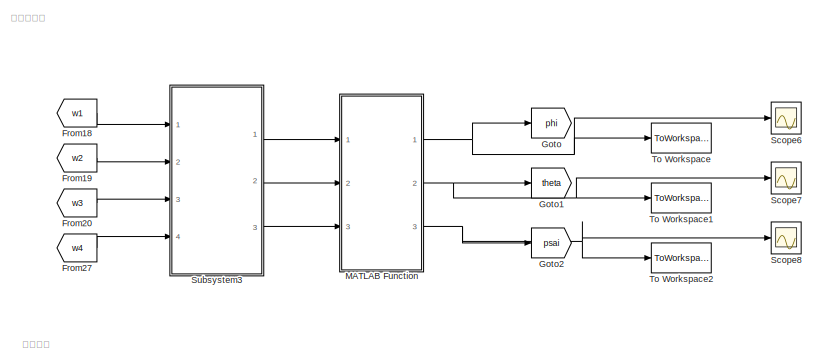
[diagram: root canvas - part 1/3, top center region]
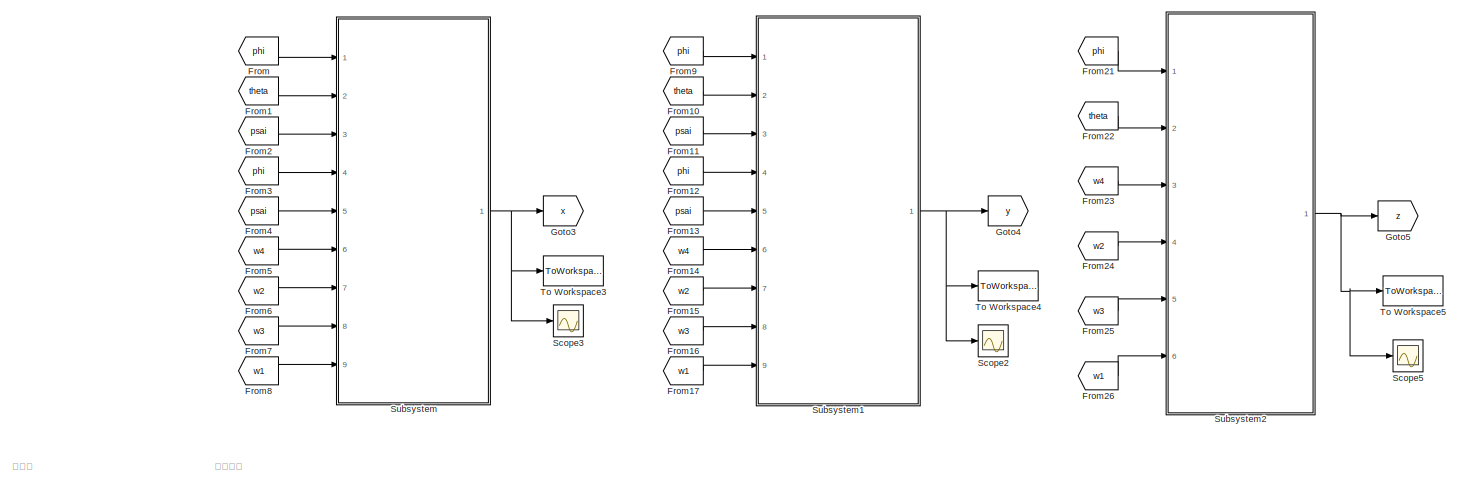
[diagram: root canvas - part 2/3, full width, middle band]
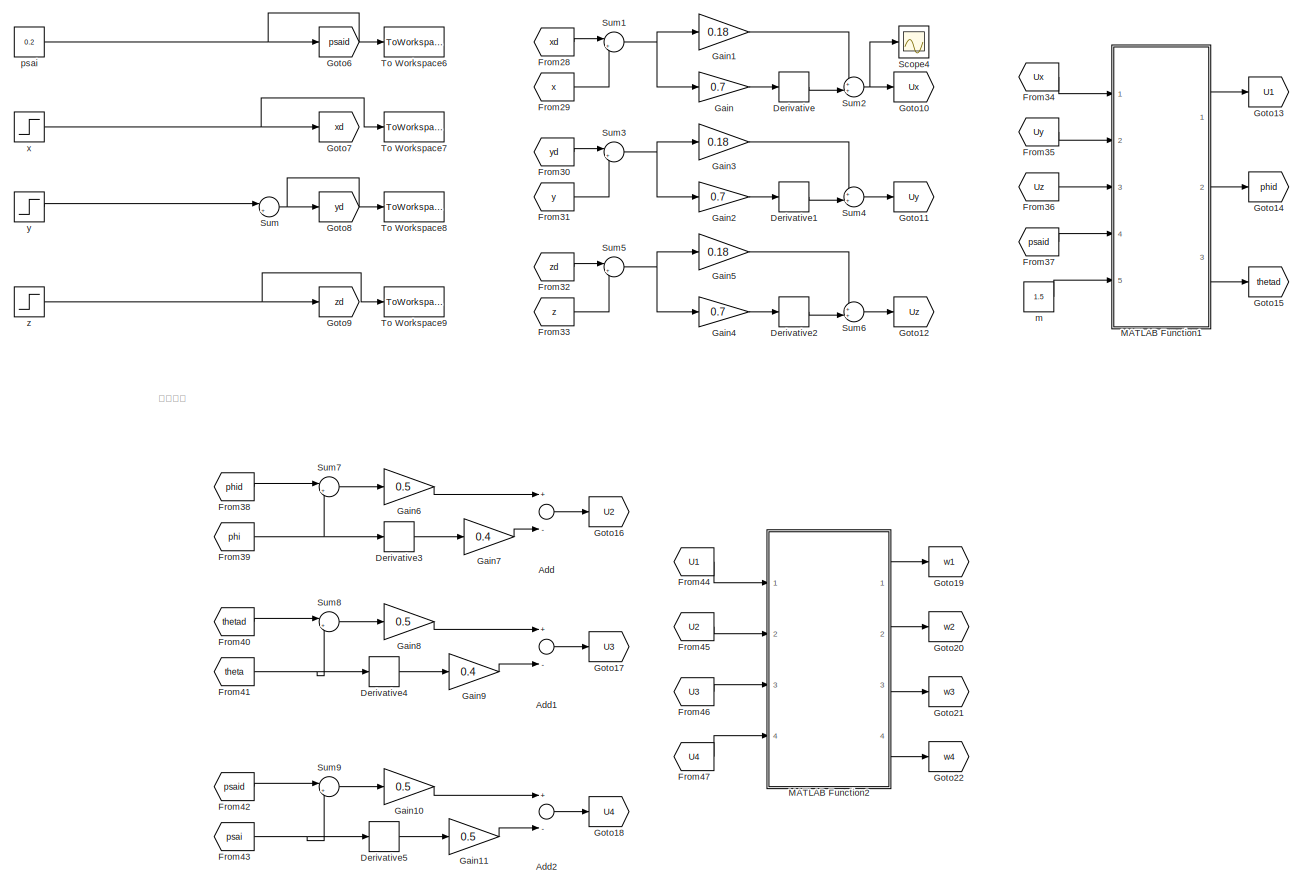
[diagram: root canvas - part 3/3, full width, bottom band]
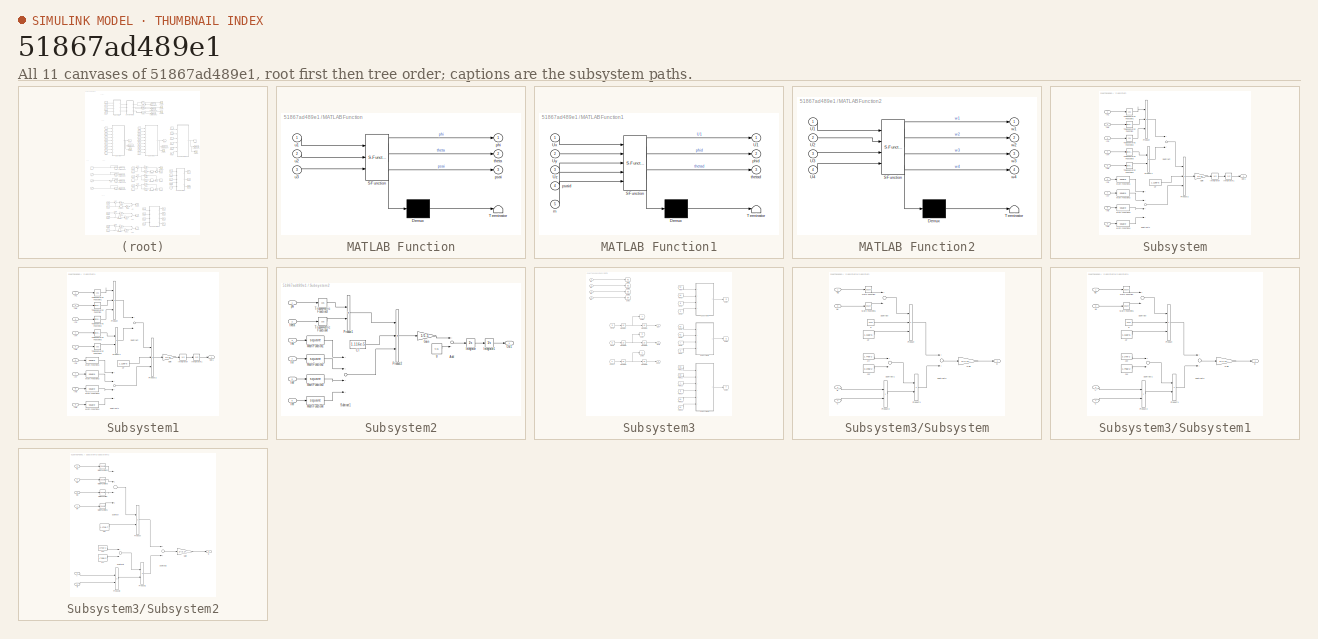
[diagram: thumbnail index - all 11 canvases of the model, root first then tree order]
MODEL slx_51867ad489e1
KIND model
CONFIG AbsTol = auto
CONFIG EnableMultiTasking = off
CONFIG FixedStep = 0.05
CONFIG MaxStep = auto
CONFIG MinStep = auto
CONFIG RelTol = 1e-3
CONFIG SampleTimeConstraint = Unconstrained
CONFIG Solver = FixedStepAuto
CONFIG SolverName = FixedStepAuto
CONFIG StartTime = 0.0
CONFIG StopTime = 50
BLOCK [Sum] Add
  InputSameDT = off
  Inputs = +-
  OutDataTypeStr = Inherit: Inherit via internal rule
  Ports = [2, 1]
  SaturateOnIntegerOverflow = off
BLOCK [Sum] Add1
  InputSameDT = off
  Inputs = +-
  OutDataTypeStr = Inherit: Inherit via internal rule
  Ports = [2, 1]
  SaturateOnIntegerOverflow = off
BLOCK [Sum] Add2
  InputSameDT = off
  Inputs = +-
  OutDataTypeStr = Inherit: Inherit via internal rule
  Ports = [2, 1]
  SaturateOnIntegerOverflow = off
BLOCK [Derivative] Derivative
BLOCK [Derivative] Derivative1
BLOCK [Derivative] Derivative2
BLOCK [Derivative] Derivative3
BLOCK [Derivative] Derivative4
BLOCK [Derivative] Derivative5
BLOCK [From] From
  GotoTag = phi
BLOCK [From] From1
  GotoTag = theta
BLOCK [From] From10
  GotoTag = theta
BLOCK [From] From11
  GotoTag = psai
BLOCK [From] From12
  GotoTag = phi
BLOCK [From] From13
  GotoTag = psai
BLOCK [From] From14
  GotoTag = w4
BLOCK [From] From15
  GotoTag = w2
BLOCK [From] From16
  GotoTag = w3
BLOCK [From] From17
  GotoTag = w1
BLOCK [From] From18
  GotoTag = w1
BLOCK [From] From19
  GotoTag = w2
BLOCK [From] From2
  GotoTag = psai
BLOCK [From] From20
  GotoTag = w3
BLOCK [From] From21
  GotoTag = phi
BLOCK [From] From22
  GotoTag = theta
BLOCK [From] From23
  GotoTag = w4
BLOCK [From] From24
  GotoTag = w2
BLOCK [From] From25
  GotoTag = w3
BLOCK [From] From26
  GotoTag = w1
BLOCK [From] From27
  GotoTag = w4
BLOCK [From] From28
  GotoTag = xd
BLOCK [From] From29
  GotoTag = x
BLOCK [From] From3
  GotoTag = phi
BLOCK [From] From30
  GotoTag = yd
BLOCK [From] From31
  GotoTag = y
BLOCK [From] From32
  GotoTag = zd
BLOCK [From] From33
  GotoTag = z
BLOCK [From] From34
  GotoTag = Ux
BLOCK [From] From35
  GotoTag = Uy
BLOCK [From] From36
  GotoTag = Uz
BLOCK [From] From37
  GotoTag = psaid
BLOCK [From] From38
  GotoTag = phid
BLOCK [From] From39
  GotoTag = phi
BLOCK [From] From4
  GotoTag = psai
BLOCK [From] From40
  GotoTag = thetad
BLOCK [From] From41
  GotoTag = theta
BLOCK [From] From42
  GotoTag = psaid
BLOCK [From] From43
  GotoTag = psai
BLOCK [From] From44
  GotoTag = U1
BLOCK [From] From45
  GotoTag = U2
BLOCK [From] From46
  GotoTag = U3
BLOCK [From] From47
  GotoTag = U4
BLOCK [From] From5
  GotoTag = w4
BLOCK [From] From6
  GotoTag = w2
BLOCK [From] From7
  GotoTag = w3
BLOCK [From] From8
  GotoTag = w1
BLOCK [From] From9
  GotoTag = phi
BLOCK [Gain] Gain
  Gain = 0.7
  OutDataTypeStr = Inherit: Inherit via internal rule
  ParamDataTypeStr = Inherit: Inherit via internal rule
  SaturateOnIntegerOverflow = off
BLOCK [Gain] Gain1
  Gain = 0.18
  OutDataTypeStr = Inherit: Inherit via internal rule
  ParamDataTypeStr = Inherit: Inherit via internal rule
  SaturateOnIntegerOverflow = off
BLOCK [Gain] Gain10
  Gain = 0.5
  OutDataTypeStr = Inherit: Inherit via internal rule
  ParamDataTypeStr = Inherit: Inherit via internal rule
  SaturateOnIntegerOverflow = off
BLOCK [Gain] Gain11
  Gain = 0.5
  OutDataTypeStr = Inherit: Inherit via internal rule
  ParamDataTypeStr = Inherit: Inherit via internal rule
  SaturateOnIntegerOverflow = off
BLOCK [Gain] Gain2
  Gain = 0.7
  OutDataTypeStr = Inherit: Inherit via internal rule
  ParamDataTypeStr = Inherit: Inherit via internal rule
  SaturateOnIntegerOverflow = off
BLOCK [Gain] Gain3
  Gain = 0.18
  OutDataTypeStr = Inherit: Inherit via internal rule
  ParamDataTypeStr = Inherit: Inherit via internal rule
  SaturateOnIntegerOverflow = off
BLOCK [Gain] Gain4
  Gain = 0.7
  OutDataTypeStr = Inherit: Inherit via internal rule
  ParamDataTypeStr = Inherit: Inherit via internal rule
  SaturateOnIntegerOverflow = off
BLOCK [Gain] Gain5
  Gain = 0.18
  OutDataTypeStr = Inherit: Inherit via internal rule
  ParamDataTypeStr = Inherit: Inherit via internal rule
  SaturateOnIntegerOverflow = off
BLOCK [Gain] Gain6
  Gain = 0.5
  OutDataTypeStr = Inherit: Inherit via internal rule
  ParamDataTypeStr = Inherit: Inherit via internal rule
  SaturateOnIntegerOverflow = off
BLOCK [Gain] Gain7
  Gain = 0.4
  OutDataTypeStr = Inherit: Inherit via internal rule
  ParamDataTypeStr = Inherit: Inherit via internal rule
  SaturateOnIntegerOverflow = off
BLOCK [Gain] Gain8
  Gain = 0.5
  OutDataTypeStr = Inherit: Inherit via internal rule
  ParamDataTypeStr = Inherit: Inherit via internal rule
  SaturateOnIntegerOverflow = off
BLOCK [Gain] Gain9
  Gain = 0.4
  OutDataTypeStr = Inherit: Inherit via internal rule
  ParamDataTypeStr = Inherit: Inherit via internal rule
  SaturateOnIntegerOverflow = off
BLOCK [Goto] Goto
  GotoTag = phi
BLOCK [Goto] Goto1
  GotoTag = theta
BLOCK [Goto] Goto10
  GotoTag = Ux
BLOCK [Goto] Goto11
  GotoTag = Uy
BLOCK [Goto] Goto12
  GotoTag = Uz
BLOCK [Goto] Goto13
  GotoTag = U1
BLOCK [Goto] Goto14
  GotoTag = phid
BLOCK [Goto] Goto15
  GotoTag = thetad
BLOCK [Goto] Goto16
  GotoTag = U2
BLOCK [Goto] Goto17
  GotoTag = U3
BLOCK [Goto] Goto18
  GotoTag = U4
BLOCK [Goto] Goto19
  GotoTag = w1
BLOCK [Goto] Goto2
  GotoTag = psai
BLOCK [Goto] Goto20
  GotoTag = w2
BLOCK [Goto] Goto21
  GotoTag = w3
BLOCK [Goto] Goto22
  GotoTag = w4
BLOCK [Goto] Goto3
  GotoTag = x
BLOCK [Goto] Goto4
  GotoTag = y
BLOCK [Goto] Goto5
  GotoTag = z
BLOCK [Goto] Goto6
  GotoTag = psaid
BLOCK [Goto] Goto7
  GotoTag = xd
BLOCK [Goto] Goto8
  GotoTag = yd
BLOCK [Goto] Goto9
  GotoTag = zd
BLOCK [SubSystem] MATLAB Function
  ErrorFcn = Stateflow.Translate.translate
  PermitHierarchicalResolution = ExplicitOnly
  Ports = [3, 3]
  RequestExecContextInheritance = off
  SFBlockType = MATLAB Function
  TreatAsAtomicUnit = on
  Variant = off
BLOCK [Demux] MATLAB Function/ Demux 
  Outputs = 1
  Ports = [1, 1]
BLOCK [S-Function] MATLAB Function/ SFunction 
  EnableBusSupport = on
  FunctionName = sf_sfun
  PortCounts = [3 4]
  Ports = [3, 4]
  SFcnIsStateOwnerBlock = off
  SFunctionDeploymentMode = off
  Tag = Stateflow S-Function PDcontroller 2
BLOCK [Terminator] MATLAB Function/ Terminator 
BLOCK [Outport] MATLAB Function/phi
  IconDisplay = Port number
BLOCK [Outport] MATLAB Function/psai
  IconDisplay = Port number
  Port = 3
BLOCK [Outport] MATLAB Function/theta
  IconDisplay = Port number
  Port = 2
BLOCK [Inport] MATLAB Function/u1
  IconDisplay = Port number
BLOCK [Inport] MATLAB Function/u2
  IconDisplay = Port number
  Port = 2
BLOCK [Inport] MATLAB Function/u3
  IconDisplay = Port number
  Port = 3
BLOCK [SubSystem] MATLAB Function1
  ErrorFcn = Stateflow.Translate.translate
  PermitHierarchicalResolution = ExplicitOnly
  Ports = [5, 3]
  RequestExecContextInheritance = off
  SFBlockType = MATLAB Function
  TreatAsAtomicUnit = on
  Variant = off
BLOCK [Demux] MATLAB Function1/ Demux 
  Outputs = 1
  Ports = [1, 1]
BLOCK [S-Function] MATLAB Function1/ SFunction 
  EnableBusSupport = on
  FunctionName = sf_sfun
  PortCounts = [5 4]
  Ports = [5, 4]
  SFcnIsStateOwnerBlock = off
  SFunctionDeploymentMode = off
  Tag = Stateflow S-Function PDcontroller 1
BLOCK [Terminator] MATLAB Function1/ Terminator 
BLOCK [Outport] MATLAB Function1/U1
  IconDisplay = Port number
BLOCK [Inport] MATLAB Function1/Ux
  IconDisplay = Port number
BLOCK [Inport] MATLAB Function1/Uy
  IconDisplay = Port number
  Port = 2
BLOCK [Inport] MATLAB Function1/Uz
  IconDisplay = Port number
  Port = 3
BLOCK [Inport] MATLAB Function1/m
  IconDisplay = Port number
  Port = 5
BLOCK [Outport] MATLAB Function1/phid
  IconDisplay = Port number
  Port = 2
BLOCK [Inport] MATLAB Function1/psaid
  IconDisplay = Port number
  Port = 4
BLOCK [Outport] MATLAB Function1/thetad
  IconDisplay = Port number
  Port = 3
BLOCK [SubSystem] MATLAB Function2
  ErrorFcn = Stateflow.Translate.translate
  PermitHierarchicalResolution = ExplicitOnly
  Ports = [4, 4]
  RequestExecContextInheritance = off
  SFBlockType = MATLAB Function
  TreatAsAtomicUnit = on
  Variant = off
BLOCK [Demux] MATLAB Function2/ Demux 
  Outputs = 1
  Ports = [1, 1]
BLOCK [S-Function] MATLAB Function2/ SFunction 
  EnableBusSupport = on
  FunctionName = sf_sfun
  PortCounts = [4 5]
  Ports = [4, 5]
  SFcnIsStateOwnerBlock = off
  SFunctionDeploymentMode = off
  Tag = Stateflow S-Function PDcontroller 3
BLOCK [Terminator] MATLAB Function2/ Terminator 
BLOCK [Inport] MATLAB Function2/U1
  IconDisplay = Port number
BLOCK [Inport] MATLAB Function2/U2
  IconDisplay = Port number
  Port = 2
BLOCK [Inport] MATLAB Function2/U3
  IconDisplay = Port number
  Port = 3
BLOCK [Inport] MATLAB Function2/U4
  IconDisplay = Port number
  Port = 4
BLOCK [Outport] MATLAB Function2/w1
  IconDisplay = Port number
BLOCK [Outport] MATLAB Function2/w2
  IconDisplay = Port number
  Port = 2
BLOCK [Outport] MATLAB Function2/w3
  IconDisplay = Port number
  Port = 3
BLOCK [Outport] MATLAB Function2/w4
  IconDisplay = Port number
  Port = 4
BLOCK [Scope] Scope2
  NumInputPorts = 1
  Ports = [1]
  ScopeSpecificationString = Simulink.scopes.TimeScopeBlockCfg('CurrentConfiguration', extmgr.ConfigurationSet(extmgr.Configuration('Core','General UI',true),extmgr.Configuration('Core','Source UI',true),extmgr.Configuration('Sources','WiredSimulink',true,'DataLoggingVariableName','ScopeData1'),extmgr.Configuration('Visuals','Time Domain',true,'SerializedDisplays',{struct('MinYLimReal','-0.46538','MaxYLimReal','3.38504','YLab...<+1425ch>
BLOCK [Scope] Scope3
  NumInputPorts = 1
  Ports = [1]
  ScopeSpecificationString = Simulink.scopes.TimeScopeBlockCfg('CurrentConfiguration', extmgr.ConfigurationSet(extmgr.Configuration('Core','General UI',true),extmgr.Configuration('Core','Source UI',true),extmgr.Configuration('Sources','WiredSimulink',true,'DataLoggingVariableName','ScopeData2'),extmgr.Configuration('Visuals','Time Domain',true,'SerializedDisplays',{struct('MinYLimReal','-0.21259','MaxYLimReal','1.1815','YLabe...<+1439ch>
BLOCK [Scope] Scope4
  NumInputPorts = 1
  Ports = [1]
  ScopeSpecificationString = Simulink.scopes.TimeScopeBlockCfg('CurrentConfiguration', extmgr.ConfigurationSet(extmgr.Configuration('Core','General UI',true),extmgr.Configuration('Core','Source UI',true),extmgr.Configuration('Sources','WiredSimulink',true,'DataLoggingVariableName','ScopeData3'),extmgr.Configuration('Visuals','Time Domain',true,'SerializedDisplays',{struct('MinYLimReal','-7.26206','MaxYLimReal','0.86245','YLab...<+1465ch>
BLOCK [Scope] Scope5
  NumInputPorts = 1
  Ports = [1]
  ScopeSpecificationString = Simulink.scopes.TimeScopeBlockCfg('CurrentConfiguration', extmgr.ConfigurationSet(extmgr.Configuration('Core','General UI',true),extmgr.Configuration('Core','Source UI',true),extmgr.Configuration('Sources','WiredSimulink',true,'DataLoggingVariableName','ScopeData4'),extmgr.Configuration('Visuals','Time Domain',true,'SerializedDisplays',{struct('MinYLimReal','-0.45583','MaxYLimReal','3.81946','YLab...<+1427ch>
BLOCK [Scope] Scope6
  NumInputPorts = 1
  Ports = [1]
  ScopeSpecificationString = Simulink.scopes.TimeScopeBlockCfg('CurrentConfiguration', extmgr.ConfigurationSet(extmgr.Configuration('Core','General UI',true),extmgr.Configuration('Core','Source UI',true),extmgr.Configuration('Sources','WiredSimulink',true,'DataLoggingVariableName','ScopeData5'),extmgr.Configuration('Visuals','Time Domain',true,'SerializedDisplays',{struct('MinYLimReal','-0.02067','MaxYLimReal','0.02284','YLab...<+1451ch>
BLOCK [Scope] Scope7
  NumInputPorts = 1
  Ports = [1]
  ScopeSpecificationString = Simulink.scopes.TimeScopeBlockCfg('CurrentConfiguration', extmgr.ConfigurationSet(extmgr.Configuration('Core','General UI',true),extmgr.Configuration('Core','Source UI',true),extmgr.Configuration('Sources','WiredSimulink',true,'DataLoggingVariableName','ScopeData6'),extmgr.Configuration('Visuals','Time Domain',true,'SerializedDisplays',{struct('MinYLimReal','-0.01888','MaxYLimReal','0.0162','YLabe...<+1434ch>
BLOCK [Scope] Scope8
  NumInputPorts = 1
  Ports = [1]
  ScopeSpecificationString = Simulink.scopes.TimeScopeBlockCfg('CurrentConfiguration', extmgr.ConfigurationSet(extmgr.Configuration('Core','General UI',true),extmgr.Configuration('Core','Source UI',true),extmgr.Configuration('Sources','WiredSimulink',true),extmgr.Configuration('Visuals','Time Domain',true,'SerializedDisplays',{struct('MinYLimReal','-0.02938','MaxYLimReal','0.26438','YLabelReal','','MinYLimMag','0.00000','MaxY...<+1398ch>
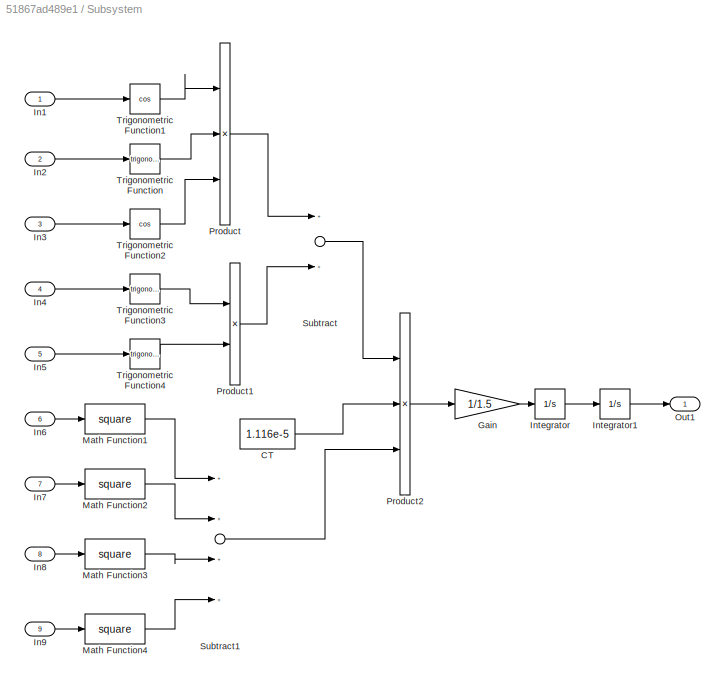
BLOCK [SubSystem] Subsystem
  Ports = [9, 1]
  RequestExecContextInheritance = off
  Variant = off
BLOCK [Constant] Subsystem/CT
  Value = 1.116e-5
BLOCK [Gain] Subsystem/Gain
  Gain = 1/1.5
  OutDataTypeStr = Inherit: Inherit via internal rule
  ParamDataTypeStr = Inherit: Inherit via internal rule
  SaturateOnIntegerOverflow = off
BLOCK [Inport] Subsystem/In1
  IconDisplay = Port number
BLOCK [Inport] Subsystem/In2
  IconDisplay = Port number
  Port = 2
BLOCK [Inport] Subsystem/In3
  IconDisplay = Port number
  Port = 3
BLOCK [Inport] Subsystem/In4
  IconDisplay = Port number
  Port = 4
BLOCK [Inport] Subsystem/In5
  IconDisplay = Port number
  Port = 5
BLOCK [Inport] Subsystem/In6
  IconDisplay = Port number
  Port = 6
BLOCK [Inport] Subsystem/In7
  IconDisplay = Port number
  Port = 7
BLOCK [Inport] Subsystem/In8
  IconDisplay = Port number
  Port = 8
BLOCK [Inport] Subsystem/In9
  IconDisplay = Port number
  Port = 9
BLOCK [Integrator] Subsystem/Integrator
  Ports = [1, 1]
BLOCK [Integrator] Subsystem/Integrator1
  Ports = [1, 1]
BLOCK [Math] Subsystem/Math Function1
  Operator = square
  Ports = [1, 1]
BLOCK [Math] Subsystem/Math Function2
  Operator = square
  Ports = [1, 1]
BLOCK [Math] Subsystem/Math Function3
  Operator = square
  Ports = [1, 1]
BLOCK [Math] Subsystem/Math Function4
  Operator = square
  Ports = [1, 1]
BLOCK [Outport] Subsystem/Out1
  IconDisplay = Port number
BLOCK [Product] Subsystem/Product
  InputSameDT = off
  Inputs = 3
  OutDataTypeStr = Inherit: Inherit via internal rule
  Ports = [3, 1]
  RndMeth = Floor
  SaturateOnIntegerOverflow = off
BLOCK [Product] Subsystem/Product1
  InputSameDT = off
  OutDataTypeStr = Inherit: Inherit via internal rule
  Ports = [2, 1]
  RndMeth = Floor
  SaturateOnIntegerOverflow = off
BLOCK [Product] Subsystem/Product2
  InputSameDT = off
  Inputs = 3
  OutDataTypeStr = Inherit: Inherit via internal rule
  Ports = [3, 1]
  RndMeth = Floor
  SaturateOnIntegerOverflow = off
BLOCK [Sum] Subsystem/Subtract
  InputSameDT = off
  OutDataTypeStr = Inherit: Inherit via internal rule
  Ports = [2, 1]
  SaturateOnIntegerOverflow = off
BLOCK [Sum] Subsystem/Subtract1
  InputSameDT = off
  Inputs = ++++
  OutDataTypeStr = Inherit: Inherit via internal rule
  Ports = [4, 1]
  SaturateOnIntegerOverflow = off
BLOCK [Trigonometry] Subsystem/Trigonometric Function
  Ports = [1, 1]
BLOCK [Trigonometry] Subsystem/Trigonometric Function1
  Operator = cos
  Ports = [1, 1]
BLOCK [Trigonometry] Subsystem/Trigonometric Function2
  Operator = cos
  Ports = [1, 1]
BLOCK [Trigonometry] Subsystem/Trigonometric Function3
  Ports = [1, 1]
BLOCK [Trigonometry] Subsystem/Trigonometric Function4
  Ports = [1, 1]
BLOCK [SubSystem] Subsystem1
  Ports = [9, 1]
  RequestExecContextInheritance = off
  Variant = off
BLOCK [Constant] Subsystem1/CT
  Value = 1.116e-5
BLOCK [Gain] Subsystem1/Gain
  Gain = 1/1.5
  OutDataTypeStr = Inherit: Inherit via internal rule
  ParamDataTypeStr = Inherit: Inherit via internal rule
  SaturateOnIntegerOverflow = off
BLOCK [Inport] Subsystem1/In1
  IconDisplay = Port number
BLOCK [Inport] Subsystem1/In2
  IconDisplay = Port number
  Port = 2
BLOCK [Inport] Subsystem1/In3
  IconDisplay = Port number
  Port = 3
BLOCK [Inport] Subsystem1/In4
  IconDisplay = Port number
  Port = 4
BLOCK [Inport] Subsystem1/In5
  IconDisplay = Port number
  Port = 5
BLOCK [Inport] Subsystem1/In6
  IconDisplay = Port number
  Port = 6
BLOCK [Inport] Subsystem1/In7
  IconDisplay = Port number
  Port = 7
BLOCK [Inport] Subsystem1/In8
  IconDisplay = Port number
  Port = 8
BLOCK [Inport] Subsystem1/In9
  IconDisplay = Port number
  Port = 9
BLOCK [Integrator] Subsystem1/Integrator
  Ports = [1, 1]
BLOCK [Integrator] Subsystem1/Integrator1
  Ports = [1, 1]
BLOCK [Math] Subsystem1/Math Function1
  Operator = square
  Ports = [1, 1]
BLOCK [Math] Subsystem1/Math Function2
  Operator = square
  Ports = [1, 1]
BLOCK [Math] Subsystem1/Math Function3
  Operator = square
  Ports = [1, 1]
BLOCK [Math] Subsystem1/Math Function4
  Operator = square
  Ports = [1, 1]
BLOCK [Outport] Subsystem1/Out1
  IconDisplay = Port number
BLOCK [Product] Subsystem1/Product
  InputSameDT = off
  Inputs = 3
  OutDataTypeStr = Inherit: Inherit via internal rule
  Ports = [3, 1]
  RndMeth = Floor
  SaturateOnIntegerOverflow = off
BLOCK [Product] Subsystem1/Product1
  InputSameDT = off
  OutDataTypeStr = Inherit: Inherit via internal rule
  Ports = [2, 1]
  RndMeth = Floor
  SaturateOnIntegerOverflow = off
BLOCK [Product] Subsystem1/Product2
  InputSameDT = off
  Inputs = 3
  OutDataTypeStr = Inherit: Inherit via internal rule
  Ports = [3, 1]
  RndMeth = Floor
  SaturateOnIntegerOverflow = off
BLOCK [Sum] Subsystem1/Subtract
  InputSameDT = off
  Inputs = +-
  OutDataTypeStr = Inherit: Inherit via internal rule
  Ports = [2, 1]
  SaturateOnIntegerOverflow = off
BLOCK [Sum] Subsystem1/Subtract1
  InputSameDT = off
  Inputs = ++++
  OutDataTypeStr = Inherit: Inherit via internal rule
  Ports = [4, 1]
  SaturateOnIntegerOverflow = off
BLOCK [Trigonometry] Subsystem1/Trigonometric Function
  Ports = [1, 1]
BLOCK [Trigonometry] Subsystem1/Trigonometric Function1
  Operator = cos
  Ports = [1, 1]
BLOCK [Trigonometry] Subsystem1/Trigonometric Function2
  Ports = [1, 1]
BLOCK [Trigonometry] Subsystem1/Trigonometric Function3
  Ports = [1, 1]
BLOCK [Trigonometry] Subsystem1/Trigonometric Function4
  Operator = cos
  Ports = [1, 1]
BLOCK [SubSystem] Subsystem2
  Ports = [6, 1]
  RequestExecContextInheritance = off
  Variant = off
BLOCK [Sum] Subsystem2/Add
  InputSameDT = off
  Inputs = +-
  OutDataTypeStr = Inherit: Inherit via internal rule
  Ports = [2, 1]
  SaturateOnIntegerOverflow = off
BLOCK [Constant] Subsystem2/CT
  Value = 1.116e-5
BLOCK [Gain] Subsystem2/Gain
  Gain = 1/1.5
  OutDataTypeStr = Inherit: Inherit via internal rule
  ParamDataTypeStr = Inherit: Inherit via internal rule
  SaturateOnIntegerOverflow = off
BLOCK [Inport] Subsystem2/In6
  IconDisplay = Port number
  Port = 3
BLOCK [Inport] Subsystem2/In7
  IconDisplay = Port number
  Port = 4
BLOCK [Inport] Subsystem2/In8
  IconDisplay = Port number
  Port = 5
BLOCK [Inport] Subsystem2/In9
  IconDisplay = Port number
  Port = 6
BLOCK [Integrator] Subsystem2/Integrator
  Ports = [1, 1]
BLOCK [Integrator] Subsystem2/Integrator1
  Ports = [1, 1]
BLOCK [Math] Subsystem2/Math Function1
  Operator = square
  Ports = [1, 1]
BLOCK [Math] Subsystem2/Math Function2
  Operator = square
  Ports = [1, 1]
BLOCK [Math] Subsystem2/Math Function3
  Operator = square
  Ports = [1, 1]
BLOCK [Math] Subsystem2/Math Function4
  Operator = square
  Ports = [1, 1]
BLOCK [Outport] Subsystem2/Out1
  IconDisplay = Port number
BLOCK [Product] Subsystem2/Product1
  InputSameDT = off
  OutDataTypeStr = Inherit: Inherit via internal rule
  Ports = [2, 1]
  RndMeth = Floor
  SaturateOnIntegerOverflow = off
BLOCK [Product] Subsystem2/Product2
  InputSameDT = off
  Inputs = 3
  OutDataTypeStr = Inherit: Inherit via internal rule
  Ports = [3, 1]
  RndMeth = Floor
  SaturateOnIntegerOverflow = off
BLOCK [Sum] Subsystem2/Subtract1
  InputSameDT = off
  Inputs = ++++
  OutDataTypeStr = Inherit: Inherit via internal rule
  Ports = [4, 1]
  SaturateOnIntegerOverflow = off
BLOCK [Trigonometry] Subsystem2/Trigonometric Function3
  Operator = cos
  Ports = [1, 1]
BLOCK [Trigonometry] Subsystem2/Trigonometric Function4
  Operator = cos
  Ports = [1, 1]
BLOCK [Constant] Subsystem2/g
  Value = 9.81
BLOCK [Inport] Subsystem2/phi
  IconDisplay = Port number
BLOCK [Inport] Subsystem2/theta
  IconDisplay = Port number
  Port = 2
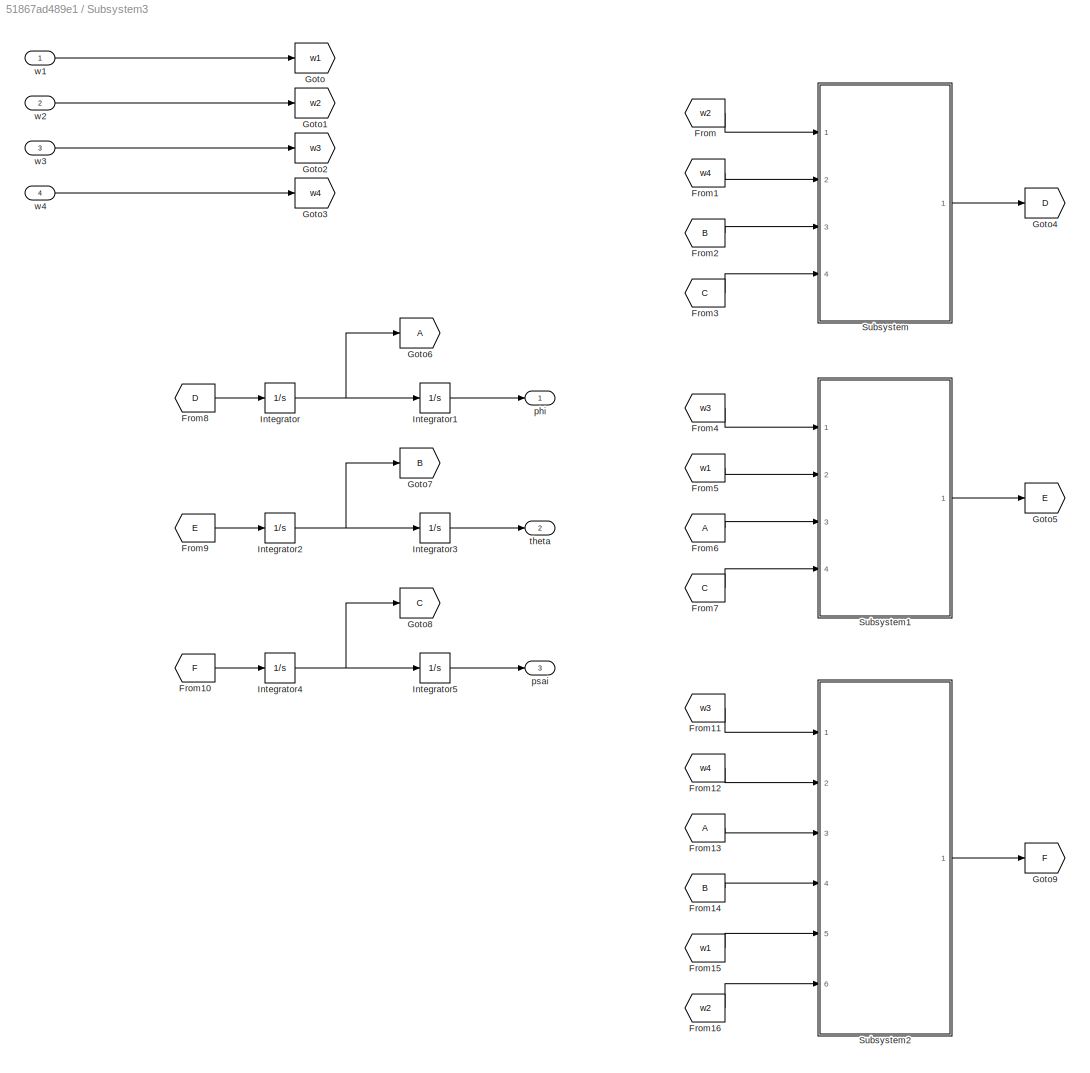
BLOCK [SubSystem] Subsystem3
  Ports = [4, 3]
  RequestExecContextInheritance = off
  Variant = off
BLOCK [From] Subsystem3/From
  GotoTag = w2
BLOCK [From] Subsystem3/From1
  GotoTag = w4
BLOCK [From] Subsystem3/From10
  GotoTag = F
BLOCK [From] Subsystem3/From11
  GotoTag = w3
BLOCK [From] Subsystem3/From12
  GotoTag = w4
BLOCK [From] Subsystem3/From13
BLOCK [From] Subsystem3/From14
  GotoTag = B
BLOCK [From] Subsystem3/From15
  GotoTag = w1
BLOCK [From] Subsystem3/From16
  GotoTag = w2
BLOCK [From] Subsystem3/From2
  GotoTag = B
BLOCK [From] Subsystem3/From3
  GotoTag = C
BLOCK [From] Subsystem3/From4
  GotoTag = w3
BLOCK [From] Subsystem3/From5
  GotoTag = w1
BLOCK [From] Subsystem3/From6
BLOCK [From] Subsystem3/From7
  GotoTag = C
BLOCK [From] Subsystem3/From8
  GotoTag = D
BLOCK [From] Subsystem3/From9
  GotoTag = E
BLOCK [Goto] Subsystem3/Goto
  GotoTag = w1
BLOCK [Goto] Subsystem3/Goto1
  GotoTag = w2
BLOCK [Goto] Subsystem3/Goto2
  GotoTag = w3
BLOCK [Goto] Subsystem3/Goto3
  GotoTag = w4
BLOCK [Goto] Subsystem3/Goto4
  GotoTag = D
BLOCK [Goto] Subsystem3/Goto5
  GotoTag = E
BLOCK [Goto] Subsystem3/Goto6
BLOCK [Goto] Subsystem3/Goto7
  GotoTag = B
BLOCK [Goto] Subsystem3/Goto8
  GotoTag = C
BLOCK [Goto] Subsystem3/Goto9
  GotoTag = F
BLOCK [Integrator] Subsystem3/Integrator
  Ports = [1, 1]
BLOCK [Integrator] Subsystem3/Integrator1
  Ports = [1, 1]
BLOCK [Integrator] Subsystem3/Integrator2
  Ports = [1, 1]
BLOCK [Integrator] Subsystem3/Integrator3
  Ports = [1, 1]
BLOCK [Integrator] Subsystem3/Integrator4
  Ports = [1, 1]
BLOCK [Integrator] Subsystem3/Integrator5
  Ports = [1, 1]
BLOCK [SubSystem] Subsystem3/Subsystem
  Ports = [4, 1]
  RequestExecContextInheritance = off
  Variant = off
BLOCK [Inport] Subsystem3/Subsystem/B
  IconDisplay = Port number
  Port = 3
BLOCK [Inport] Subsystem3/Subsystem/C
  IconDisplay = Port number
  Port = 4
BLOCK [Constant] Subsystem3/Subsystem/CT
  Value = 1.116e-5
BLOCK [Outport] Subsystem3/Subsystem/D
  IconDisplay = Port number
BLOCK [Gain] Subsystem3/Subsystem/Gain
  Gain = 1/(1.745e-2)
  OutDataTypeStr = Inherit: Inherit via internal rule
  ParamDataTypeStr = Inherit: Inherit via internal rule
  SaturateOnIntegerOverflow = off
BLOCK [Constant] Subsystem3/Subsystem/Jyy
  Value = 1.745e-2
BLOCK [Constant] Subsystem3/Subsystem/Jzz
  Value = 3.175e-2
BLOCK [Math] Subsystem3/Subsystem/Math Function
  Operator = square
  Ports = [1, 1]
BLOCK [Math] Subsystem3/Subsystem/Math Function1
  Operator = square
  Ports = [1, 1]
BLOCK [Product] Subsystem3/Subsystem/Product
  InputSameDT = off
  Inputs = 3
  OutDataTypeStr = Inherit: Inherit via internal rule
  Ports = [3, 1]
  RndMeth = Floor
  SaturateOnIntegerOverflow = off
BLOCK [Product] Subsystem3/Subsystem/Product1
  InputSameDT = off
  OutDataTypeStr = Inherit: Inherit via internal rule
  Ports = [2, 1]
  RndMeth = Floor
  SaturateOnIntegerOverflow = off
BLOCK [Product] Subsystem3/Subsystem/Product2
  InputSameDT = off
  OutDataTypeStr = Inherit: Inherit via internal rule
  Ports = [2, 1]
  RndMeth = Floor
  SaturateOnIntegerOverflow = off
BLOCK [Sum] Subsystem3/Subsystem/Subtract
  InputSameDT = off
  Inputs = +-
  OutDataTypeStr = Inherit: Inherit via internal rule
  Ports = [2, 1]
  SaturateOnIntegerOverflow = off
BLOCK [Sum] Subsystem3/Subsystem/Subtract1
  InputSameDT = off
  Inputs = +-
  OutDataTypeStr = Inherit: Inherit via internal rule
  Ports = [2, 1]
  SaturateOnIntegerOverflow = off
BLOCK [Sum] Subsystem3/Subsystem/Subtract2
  InputSameDT = off
  OutDataTypeStr = Inherit: Inherit via internal rule
  Ports = [2, 1]
  SaturateOnIntegerOverflow = off
BLOCK [Constant] Subsystem3/Subsystem/d
  Value = 0.225
BLOCK [Inport] Subsystem3/Subsystem/w2
  IconDisplay = Port number
BLOCK [Inport] Subsystem3/Subsystem/w4
  IconDisplay = Port number
  Port = 2
BLOCK [SubSystem] Subsystem3/Subsystem1
  Ports = [4, 1]
  RequestExecContextInheritance = off
  Variant = off
BLOCK [Inport] Subsystem3/Subsystem1/A
  IconDisplay = Port number
  Port = 3
BLOCK [Inport] Subsystem3/Subsystem1/C
  IconDisplay = Port number
  Port = 4
BLOCK [Constant] Subsystem3/Subsystem1/CT
  Value = 1.116e-5
BLOCK [Outport] Subsystem3/Subsystem1/E
  IconDisplay = Port number
BLOCK [Gain] Subsystem3/Subsystem1/Gain
  Gain = 1/(1.745e-2)
  OutDataTypeStr = Inherit: Inherit via internal rule
  ParamDataTypeStr = Inherit: Inherit via internal rule
  SaturateOnIntegerOverflow = off
BLOCK [Constant] Subsystem3/Subsystem1/Jxx
  Value = 1.745e-2
BLOCK [Constant] Subsystem3/Subsystem1/Jzz
  Value = 3.175e-2
BLOCK [Math] Subsystem3/Subsystem1/Math Function
  Operator = square
  Ports = [1, 1]
BLOCK [Math] Subsystem3/Subsystem1/Math Function1
  Operator = square
  Ports = [1, 1]
BLOCK [Product] Subsystem3/Subsystem1/Product
  InputSameDT = off
  Inputs = 3
  OutDataTypeStr = Inherit: Inherit via internal rule
  Ports = [3, 1]
  RndMeth = Floor
  SaturateOnIntegerOverflow = off
BLOCK [Product] Subsystem3/Subsystem1/Product1
  InputSameDT = off
  OutDataTypeStr = Inherit: Inherit via internal rule
  Ports = [2, 1]
  RndMeth = Floor
  SaturateOnIntegerOverflow = off
BLOCK [Product] Subsystem3/Subsystem1/Product2
  InputSameDT = off
  OutDataTypeStr = Inherit: Inherit via internal rule
  Ports = [2, 1]
  RndMeth = Floor
  SaturateOnIntegerOverflow = off
BLOCK [Sum] Subsystem3/Subsystem1/Subtract
  InputSameDT = off
  Inputs = +-
  OutDataTypeStr = Inherit: Inherit via internal rule
  Ports = [2, 1]
  SaturateOnIntegerOverflow = off
BLOCK [Sum] Subsystem3/Subsystem1/Subtract1
  InputSameDT = off
  Inputs = +-
  OutDataTypeStr = Inherit: Inherit via internal rule
  Ports = [2, 1]
  SaturateOnIntegerOverflow = off
BLOCK [Sum] Subsystem3/Subsystem1/Subtract2
  InputSameDT = off
  OutDataTypeStr = Inherit: Inherit via internal rule
  Ports = [2, 1]
  SaturateOnIntegerOverflow = off
BLOCK [Constant] Subsystem3/Subsystem1/d
  Value = 0.225
BLOCK [Inport] Subsystem3/Subsystem1/w1
  IconDisplay = Port number
  Port = 2
BLOCK [Inport] Subsystem3/Subsystem1/w3
  IconDisplay = Port number
BLOCK [SubSystem] Subsystem3/Subsystem2
  Ports = [6, 1]
  RequestExecContextInheritance = off
  Variant = off
BLOCK [Inport] Subsystem3/Subsystem2/A
  IconDisplay = Port number
  Port = 3
BLOCK [Inport] Subsystem3/Subsystem2/B
  IconDisplay = Port number
  Port = 4
BLOCK [Constant] Subsystem3/Subsystem2/CM
  Value = 1.474e-7
BLOCK [Outport] Subsystem3/Subsystem2/E
  IconDisplay = Port number
BLOCK [Gain] Subsystem3/Subsystem2/Gain
  Gain = 1/(3.175e-2)
  OutDataTypeStr = Inherit: Inherit via internal rule
  ParamDataTypeStr = Inherit: Inherit via internal rule
  SaturateOnIntegerOverflow = off
BLOCK [Constant] Subsystem3/Subsystem2/Jxx
  Value = 1.745e-2
BLOCK [Constant] Subsystem3/Subsystem2/Jyy
  Value = 1.745e-2
BLOCK [Math] Subsystem3/Subsystem2/Math Function
  Operator = square
  Ports = [1, 1]
BLOCK [Math] Subsystem3/Subsystem2/Math Function1
  Operator = square
  Ports = [1, 1]
BLOCK [Math] Subsystem3/Subsystem2/Math Function2
  Operator = square
  Ports = [1, 1]
BLOCK [Math] Subsystem3/Subsystem2/Math Function3
  Operator = square
  Ports = [1, 1]
BLOCK [Product] Subsystem3/Subsystem2/Product
  InputSameDT = off
  OutDataTypeStr = Inherit: Inherit via internal rule
  Ports = [2, 1]
  RndMeth = Floor
  SaturateOnIntegerOverflow = off
BLOCK [Product] Subsystem3/Subsystem2/Product1
  InputSameDT = off
  OutDataTypeStr = Inherit: Inherit via internal rule
  Ports = [2, 1]
  RndMeth = Floor
  SaturateOnIntegerOverflow = off
BLOCK [Product] Subsystem3/Subsystem2/Product2
  InputSameDT = off
  OutDataTypeStr = Inherit: Inherit via internal rule
  Ports = [2, 1]
  RndMeth = Floor
  SaturateOnIntegerOverflow = off
BLOCK [Sum] Subsystem3/Subsystem2/Subtract
  InputSameDT = off
  Inputs = -+-+
  OutDataTypeStr = Inherit: Inherit via internal rule
  Ports = [4, 1]
  SaturateOnIntegerOverflow = off
BLOCK [Sum] Subsystem3/Subsystem2/Subtract1
  InputSameDT = off
  Inputs = +-
  OutDataTypeStr = Inherit: Inherit via internal rule
  Ports = [2, 1]
  SaturateOnIntegerOverflow = off
BLOCK [Sum] Subsystem3/Subsystem2/Subtract2
  InputSameDT = off
  OutDataTypeStr = Inherit: Inherit via internal rule
  Ports = [2, 1]
  SaturateOnIntegerOverflow = off
BLOCK [Inport] Subsystem3/Subsystem2/w1
  IconDisplay = Port number
  Port = 5
BLOCK [Inport] Subsystem3/Subsystem2/w2
  IconDisplay = Port number
  Port = 6
BLOCK [Inport] Subsystem3/Subsystem2/w3
  IconDisplay = Port number
BLOCK [Inport] Subsystem3/Subsystem2/w4
  IconDisplay = Port number
  Port = 2
BLOCK [Outport] Subsystem3/phi
  IconDisplay = Port number
BLOCK [Outport] Subsystem3/psai 
  IconDisplay = Port number
  Port = 3
BLOCK [Outport] Subsystem3/theta
  IconDisplay = Port number
  Port = 2
BLOCK [Inport] Subsystem3/w1
  IconDisplay = Port number
BLOCK [Inport] Subsystem3/w2
  IconDisplay = Port number
  Port = 2
BLOCK [Inport] Subsystem3/w3
  IconDisplay = Port number
  Port = 3
BLOCK [Inport] Subsystem3/w4
  IconDisplay = Port number
  Port = 4
BLOCK [Sum] Sum
  IconShape = round
  InputSameDT = off
  Inputs = |+-
  OutDataTypeStr = Inherit: Inherit via internal rule
  Ports = [2, 1]
  SaturateOnIntegerOverflow = off
BLOCK [Sum] Sum1
  IconShape = round
  InputSameDT = off
  Inputs = |+-
  OutDataTypeStr = Inherit: Inherit via internal rule
  Ports = [2, 1]
  SaturateOnIntegerOverflow = off
BLOCK [Sum] Sum2
  IconShape = round
  InputSameDT = off
  Inputs = ++|
  OutDataTypeStr = Inherit: Inherit via internal rule
  Ports = [2, 1]
  SaturateOnIntegerOverflow = off
BLOCK [Sum] Sum3
  IconShape = round
  InputSameDT = off
  Inputs = |+-
  OutDataTypeStr = Inherit: Inherit via internal rule
  Ports = [2, 1]
  SaturateOnIntegerOverflow = off
BLOCK [Sum] Sum4
  IconShape = round
  InputSameDT = off
  Inputs = ++|
  OutDataTypeStr = Inherit: Inherit via internal rule
  Ports = [2, 1]
  SaturateOnIntegerOverflow = off
BLOCK [Sum] Sum5
  IconShape = round
  InputSameDT = off
  Inputs = |+-
  OutDataTypeStr = Inherit: Inherit via internal rule
  Ports = [2, 1]
  SaturateOnIntegerOverflow = off
BLOCK [Sum] Sum6
  IconShape = round
  InputSameDT = off
  Inputs = ++|
  OutDataTypeStr = Inherit: Inherit via internal rule
  Ports = [2, 1]
  SaturateOnIntegerOverflow = off
BLOCK [Sum] Sum7
  IconShape = round
  InputSameDT = off
  Inputs = |+-
  OutDataTypeStr = Inherit: Inherit via internal rule
  Ports = [2, 1]
  SaturateOnIntegerOverflow = off
BLOCK [Sum] Sum8
  IconShape = round
  InputSameDT = off
  Inputs = |+-
  OutDataTypeStr = Inherit: Inherit via internal rule
  Ports = [2, 1]
  SaturateOnIntegerOverflow = off
BLOCK [Sum] Sum9
  IconShape = round
  InputSameDT = off
  Inputs = |+-
  OutDataTypeStr = Inherit: Inherit via internal rule
  Ports = [2, 1]
  SaturateOnIntegerOverflow = off
BLOCK [ToWorkspace] To Workspace
  FixptAsFi = on
  MaxDataPoints = inf
  Ports = [1]
  SampleTime = -1
  Save2DSignal = 3-D array (concatenate along third dimension)
  VariableName = phi
BLOCK [ToWorkspace] To Workspace1
  FixptAsFi = on
  MaxDataPoints = inf
  Ports = [1]
  SampleTime = -1
  Save2DSignal = 3-D array (concatenate along third dimension)
  VariableName = theta
BLOCK [ToWorkspace] To Workspace2
  FixptAsFi = on
  MaxDataPoints = inf
  Ports = [1]
  SampleTime = -1
  Save2DSignal = 3-D array (concatenate along third dimension)
  VariableName = psai
BLOCK [ToWorkspace] To Workspace3
  FixptAsFi = on
  MaxDataPoints = inf
  Ports = [1]
  SampleTime = -1
  Save2DSignal = 3-D array (concatenate along third dimension)
  VariableName = x
BLOCK [ToWorkspace] To Workspace4
  FixptAsFi = on
  MaxDataPoints = inf
  Ports = [1]
  SampleTime = -1
  Save2DSignal = 3-D array (concatenate along third dimension)
  VariableName = y
BLOCK [ToWorkspace] To Workspace5
  FixptAsFi = on
  MaxDataPoints = inf
  Ports = [1]
  SampleTime = -1
  Save2DSignal = 3-D array (concatenate along third dimension)
  VariableName = z
BLOCK [ToWorkspace] To Workspace6
  FixptAsFi = on
  MaxDataPoints = inf
  Ports = [1]
  SampleTime = -1
  Save2DSignal = 3-D array (concatenate along third dimension)
  VariableName = psaid
BLOCK [ToWorkspace] To Workspace7
  FixptAsFi = on
  MaxDataPoints = inf
  Ports = [1]
  SampleTime = -1
  Save2DSignal = 3-D array (concatenate along third dimension)
  VariableName = xd
BLOCK [ToWorkspace] To Workspace8
  FixptAsFi = on
  MaxDataPoints = inf
  Ports = [1]
  SampleTime = -1
  Save2DSignal = 3-D array (concatenate along third dimension)
  VariableName = yd
BLOCK [ToWorkspace] To Workspace9
  FixptAsFi = on
  MaxDataPoints = inf
  Ports = [1]
  SampleTime = -1
  Save2DSignal = 3-D array (concatenate along third dimension)
  VariableName = zd
BLOCK [Constant] m 
  Value = 1.5
BLOCK [Constant] psai
  Value = 0.2
BLOCK [Step] x
  After = 0
  Before = 3
  SampleTime = 0
  Time = 20
BLOCK [Step] y
  After = 3
  SampleTime = 0
  Time = 10
BLOCK [Step] z
  After = 0
  Before = 3
  SampleTime = 0
  Time = 30
ANNOTATION (root): 位置控制
ANNOTATION (root): 位置计算
ANNOTATION (root): 姿态控制
ANNOTATION (root): 欧拉角计算
ANNOTATION (root): 输入：
LINE Add1:1 -> Goto17:1
LINE Add2:1 -> Goto18:1
LINE Add:1 -> Goto16:1
LINE Derivative1:1 -> Sum4:2
LINE Derivative2:1 -> Sum6:2
LINE Derivative3:1 -> Gain7:1
LINE Derivative4:1 -> Gain9:1
LINE Derivative5:1 -> Gain11:1
LINE Derivative:1 -> Sum2:2
LINE From10:1 -> Subsystem1:2
LINE From11:1 -> Subsystem1:3
LINE From12:1 -> Subsystem1:4
LINE From13:1 -> Subsystem1:5
LINE From14:1 -> Subsystem1:6
LINE From15:1 -> Subsystem1:7
LINE From16:1 -> Subsystem1:8
LINE From17:1 -> Subsystem1:9
LINE From18:1 -> Subsystem3:1
LINE From19:1 -> Subsystem3:2
LINE From1:1 -> Subsystem:2
LINE From20:1 -> Subsystem3:3
LINE From21:1 -> Subsystem2:1
LINE From22:1 -> Subsystem2:2
LINE From23:1 -> Subsystem2:3
LINE From24:1 -> Subsystem2:4
LINE From25:1 -> Subsystem2:5
LINE From26:1 -> Subsystem2:6
LINE From27:1 -> Subsystem3:4
LINE From28:1 -> Sum1:1
LINE From29:1 -> Sum1:2
LINE From2:1 -> Subsystem:3
LINE From30:1 -> Sum3:1
LINE From31:1 -> Sum3:2
LINE From32:1 -> Sum5:1
LINE From33:1 -> Sum5:2
LINE From34:1 -> MATLAB Function1:1
LINE From35:1 -> MATLAB Function1:2
LINE From36:1 -> MATLAB Function1:3
LINE From37:1 -> MATLAB Function1:4
LINE From38:1 -> Sum7:1
NET From39:1 -> Derivative3:1, Sum7:2
LINE From3:1 -> Subsystem:4
LINE From40:1 -> Sum8:1
NET From41:1 -> Derivative4:1, Sum8:2
LINE From42:1 -> Sum9:1
NET From43:1 -> Derivative5:1, Sum9:2
LINE From44:1 -> MATLAB Function2:1
LINE From45:1 -> MATLAB Function2:2
LINE From46:1 -> MATLAB Function2:3
LINE From47:1 -> MATLAB Function2:4
LINE From4:1 -> Subsystem:5
LINE From5:1 -> Subsystem:6
LINE From6:1 -> Subsystem:7
LINE From7:1 -> Subsystem:8
LINE From8:1 -> Subsystem:9
LINE From9:1 -> Subsystem1:1
LINE From:1 -> Subsystem:1
LINE Gain10:1 -> Add2:1
LINE Gain11:1 -> Add2:2
LINE Gain1:1 -> Sum2:1
LINE Gain2:1 -> Derivative1:1
LINE Gain3:1 -> Sum4:1
LINE Gain4:1 -> Derivative2:1
LINE Gain5:1 -> Sum6:1
LINE Gain6:1 -> Add:1
LINE Gain7:1 -> Add:2
LINE Gain8:1 -> Add1:1
LINE Gain9:1 -> Add1:2
LINE Gain:1 -> Derivative:1
LINE MATLAB Function1:1 -> Goto13:1
LINE MATLAB Function1:2 -> Goto14:1
LINE MATLAB Function1:3 -> Goto15:1
LINE MATLAB Function2:1 -> Goto19:1
LINE MATLAB Function2:2 -> Goto20:1
LINE MATLAB Function2:3 -> Goto21:1
LINE MATLAB Function2:4 -> Goto22:1
NET MATLAB Function:1 -> Goto:1, Scope6:1, To Workspace:1
NET MATLAB Function:2 -> Goto1:1, Scope7:1, To Workspace1:1
NET MATLAB Function:3 -> Goto2:1, Scope8:1, To Workspace2:1
LINE Subsystem/CT:1 -> Subsystem/Product2:2
LINE Subsystem/Gain:1 -> Subsystem/Integrator:1
LINE Subsystem/In1:1 -> Subsystem/Trigonometric Function1:1
LINE Subsystem/In2:1 -> Subsystem/Trigonometric Function:1
LINE Subsystem/In3:1 -> Subsystem/Trigonometric Function2:1
LINE Subsystem/In4:1 -> Subsystem/Trigonometric Function3:1
LINE Subsystem/In5:1 -> Subsystem/Trigonometric Function4:1
LINE Subsystem/In6:1 -> Subsystem/Math Function1:1
LINE Subsystem/In7:1 -> Subsystem/Math Function2:1
LINE Subsystem/In8:1 -> Subsystem/Math Function3:1
LINE Subsystem/In9:1 -> Subsystem/Math Function4:1
LINE Subsystem/Integrator1:1 -> Subsystem/Out1:1
LINE Subsystem/Integrator:1 -> Subsystem/Integrator1:1
LINE Subsystem/Math Function1:1 -> Subsystem/Subtract1:1
LINE Subsystem/Math Function2:1 -> Subsystem/Subtract1:2
LINE Subsystem/Math Function3:1 -> Subsystem/Subtract1:3
LINE Subsystem/Math Function4:1 -> Subsystem/Subtract1:4
LINE Subsystem/Product1:1 -> Subsystem/Subtract:2
LINE Subsystem/Product2:1 -> Subsystem/Gain:1
LINE Subsystem/Product:1 -> Subsystem/Subtract:1
LINE Subsystem/Subtract1:1 -> Subsystem/Product2:3
LINE Subsystem/Subtract:1 -> Subsystem/Product2:1
LINE Subsystem/Trigonometric Function1:1 -> Subsystem/Product:1
LINE Subsystem/Trigonometric Function2:1 -> Subsystem/Product:3
LINE Subsystem/Trigonometric Function3:1 -> Subsystem/Product1:1
LINE Subsystem/Trigonometric Function4:1 -> Subsystem/Product1:2
LINE Subsystem/Trigonometric Function:1 -> Subsystem/Product:2
LINE Subsystem1/CT:1 -> Subsystem1/Product2:2
LINE Subsystem1/Gain:1 -> Subsystem1/Integrator:1
LINE Subsystem1/In1:1 -> Subsystem1/Trigonometric Function1:1
LINE Subsystem1/In2:1 -> Subsystem1/Trigonometric Function:1
LINE Subsystem1/In3:1 -> Subsystem1/Trigonometric Function2:1
LINE Subsystem1/In4:1 -> Subsystem1/Trigonometric Function3:1
LINE Subsystem1/In5:1 -> Subsystem1/Trigonometric Function4:1
LINE Subsystem1/In6:1 -> Subsystem1/Math Function1:1
LINE Subsystem1/In7:1 -> Subsystem1/Math Function2:1
LINE Subsystem1/In8:1 -> Subsystem1/Math Function3:1
LINE Subsystem1/In9:1 -> Subsystem1/Math Function4:1
LINE Subsystem1/Integrator1:1 -> Subsystem1/Out1:1
LINE Subsystem1/Integrator:1 -> Subsystem1/Integrator1:1
LINE Subsystem1/Math Function1:1 -> Subsystem1/Subtract1:1
LINE Subsystem1/Math Function2:1 -> Subsystem1/Subtract1:2
LINE Subsystem1/Math Function3:1 -> Subsystem1/Subtract1:3
LINE Subsystem1/Math Function4:1 -> Subsystem1/Subtract1:4
LINE Subsystem1/Product1:1 -> Subsystem1/Subtract:2
LINE Subsystem1/Product2:1 -> Subsystem1/Gain:1
LINE Subsystem1/Product:1 -> Subsystem1/Subtract:1
LINE Subsystem1/Subtract1:1 -> Subsystem1/Product2:3
LINE Subsystem1/Subtract:1 -> Subsystem1/Product2:1
LINE Subsystem1/Trigonometric Function1:1 -> Subsystem1/Product:1
LINE Subsystem1/Trigonometric Function2:1 -> Subsystem1/Product:3
LINE Subsystem1/Trigonometric Function3:1 -> Subsystem1/Product1:1
LINE Subsystem1/Trigonometric Function4:1 -> Subsystem1/Product1:2
LINE Subsystem1/Trigonometric Function:1 -> Subsystem1/Product:2
NET Subsystem1:1 -> Goto4:1, Scope2:1, To Workspace4:1
LINE Subsystem2/Add:1 -> Subsystem2/Integrator:1
LINE Subsystem2/CT:1 -> Subsystem2/Product2:2
LINE Subsystem2/Gain:1 -> Subsystem2/Add:1
LINE Subsystem2/In6:1 -> Subsystem2/Math Function1:1
LINE Subsystem2/In7:1 -> Subsystem2/Math Function2:1
LINE Subsystem2/In8:1 -> Subsystem2/Math Function3:1
LINE Subsystem2/In9:1 -> Subsystem2/Math Function4:1
LINE Subsystem2/Integrator1:1 -> Subsystem2/Out1:1
LINE Subsystem2/Integrator:1 -> Subsystem2/Integrator1:1
LINE Subsystem2/Math Function1:1 -> Subsystem2/Subtract1:1
LINE Subsystem2/Math Function2:1 -> Subsystem2/Subtract1:2
LINE Subsystem2/Math Function3:1 -> Subsystem2/Subtract1:3
LINE Subsystem2/Math Function4:1 -> Subsystem2/Subtract1:4
LINE Subsystem2/Product1:1 -> Subsystem2/Product2:1
LINE Subsystem2/Product2:1 -> Subsystem2/Gain:1
LINE Subsystem2/Subtract1:1 -> Subsystem2/Product2:3
LINE Subsystem2/Trigonometric Function3:1 -> Subsystem2/Product1:1
LINE Subsystem2/Trigonometric Function4:1 -> Subsystem2/Product1:2
LINE Subsystem2/g:1 -> Subsystem2/Add:2
LINE Subsystem2/phi:1 -> Subsystem2/Trigonometric Function3:1
LINE Subsystem2/theta:1 -> Subsystem2/Trigonometric Function4:1
NET Subsystem2:1 -> Goto5:1, Scope5:1, To Workspace5:1
LINE Subsystem3/From10:1 -> Subsystem3/Integrator4:1
LINE Subsystem3/From11:1 -> Subsystem3/Subsystem2:1
LINE Subsystem3/From12:1 -> Subsystem3/Subsystem2:2
LINE Subsystem3/From13:1 -> Subsystem3/Subsystem2:3
LINE Subsystem3/From14:1 -> Subsystem3/Subsystem2:4
LINE Subsystem3/From15:1 -> Subsystem3/Subsystem2:5
LINE Subsystem3/From16:1 -> Subsystem3/Subsystem2:6
LINE Subsystem3/From1:1 -> Subsystem3/Subsystem:2
LINE Subsystem3/From2:1 -> Subsystem3/Subsystem:3
LINE Subsystem3/From3:1 -> Subsystem3/Subsystem:4
LINE Subsystem3/From4:1 -> Subsystem3/Subsystem1:1
LINE Subsystem3/From5:1 -> Subsystem3/Subsystem1:2
LINE Subsystem3/From6:1 -> Subsystem3/Subsystem1:3
LINE Subsystem3/From7:1 -> Subsystem3/Subsystem1:4
LINE Subsystem3/From8:1 -> Subsystem3/Integrator:1
LINE Subsystem3/From9:1 -> Subsystem3/Integrator2:1
LINE Subsystem3/From:1 -> Subsystem3/Subsystem:1
LINE Subsystem3/Integrator1:1 -> Subsystem3/phi:1
NET Subsystem3/Integrator2:1 -> Subsystem3/Goto7:1, Subsystem3/Integrator3:1
LINE Subsystem3/Integrator3:1 -> Subsystem3/theta:1
NET Subsystem3/Integrator4:1 -> Subsystem3/Goto8:1, Subsystem3/Integrator5:1
LINE Subsystem3/Integrator5:1 -> Subsystem3/psai :1
NET Subsystem3/Integrator:1 -> Subsystem3/Goto6:1, Subsystem3/Integrator1:1
LINE Subsystem3/Subsystem/B:1 -> Subsystem3/Subsystem/Product2:1
LINE Subsystem3/Subsystem/C:1 -> Subsystem3/Subsystem/Product2:2
LINE Subsystem3/Subsystem/CT:1 -> Subsystem3/Subsystem/Product:3
LINE Subsystem3/Subsystem/Gain:1 -> Subsystem3/Subsystem/D:1
LINE Subsystem3/Subsystem/Jyy:1 -> Subsystem3/Subsystem/Subtract1:1
LINE Subsystem3/Subsystem/Jzz:1 -> Subsystem3/Subsystem/Subtract1:2
LINE Subsystem3/Subsystem/Math Function1:1 -> Subsystem3/Subsystem/Subtract:2
LINE Subsystem3/Subsystem/Math Function:1 -> Subsystem3/Subsystem/Subtract:1
LINE Subsystem3/Subsystem/Product1:1 -> Subsystem3/Subsystem/Subtract2:2
LINE Subsystem3/Subsystem/Product2:1 -> Subsystem3/Subsystem/Product1:2
LINE Subsystem3/Subsystem/Product:1 -> Subsystem3/Subsystem/Subtract2:1
LINE Subsystem3/Subsystem/Subtract1:1 -> Subsystem3/Subsystem/Product1:1
LINE Subsystem3/Subsystem/Subtract2:1 -> Subsystem3/Subsystem/Gain:1
LINE Subsystem3/Subsystem/Subtract:1 -> Subsystem3/Subsystem/Product:1
LINE Subsystem3/Subsystem/d:1 -> Subsystem3/Subsystem/Product:2
LINE Subsystem3/Subsystem/w2:1 -> Subsystem3/Subsystem/Math Function:1
LINE Subsystem3/Subsystem/w4:1 -> Subsystem3/Subsystem/Math Function1:1
LINE Subsystem3/Subsystem1/A:1 -> Subsystem3/Subsystem1/Product2:1
LINE Subsystem3/Subsystem1/C:1 -> Subsystem3/Subsystem1/Product2:2
LINE Subsystem3/Subsystem1/CT:1 -> Subsystem3/Subsystem1/Product:3
LINE Subsystem3/Subsystem1/Gain:1 -> Subsystem3/Subsystem1/E:1
LINE Subsystem3/Subsystem1/Jxx:1 -> Subsystem3/Subsystem1/Subtract1:2
LINE Subsystem3/Subsystem1/Jzz:1 -> Subsystem3/Subsystem1/Subtract1:1
LINE Subsystem3/Subsystem1/Math Function1:1 -> Subsystem3/Subsystem1/Subtract:2
LINE Subsystem3/Subsystem1/Math Function:1 -> Subsystem3/Subsystem1/Subtract:1
LINE Subsystem3/Subsystem1/Product1:1 -> Subsystem3/Subsystem1/Subtract2:2
LINE Subsystem3/Subsystem1/Product2:1 -> Subsystem3/Subsystem1/Product1:2
LINE Subsystem3/Subsystem1/Product:1 -> Subsystem3/Subsystem1/Subtract2:1
LINE Subsystem3/Subsystem1/Subtract1:1 -> Subsystem3/Subsystem1/Product1:1
LINE Subsystem3/Subsystem1/Subtract2:1 -> Subsystem3/Subsystem1/Gain:1
LINE Subsystem3/Subsystem1/Subtract:1 -> Subsystem3/Subsystem1/Product:1
LINE Subsystem3/Subsystem1/d:1 -> Subsystem3/Subsystem1/Product:2
LINE Subsystem3/Subsystem1/w1:1 -> Subsystem3/Subsystem1/Math Function1:1
LINE Subsystem3/Subsystem1/w3:1 -> Subsystem3/Subsystem1/Math Function:1
LINE Subsystem3/Subsystem1:1 -> Subsystem3/Goto5:1
LINE Subsystem3/Subsystem2/A:1 -> Subsystem3/Subsystem2/Product2:1
LINE Subsystem3/Subsystem2/B:1 -> Subsystem3/Subsystem2/Product2:2
LINE Subsystem3/Subsystem2/CM:1 -> Subsystem3/Subsystem2/Product:2
LINE Subsystem3/Subsystem2/Gain:1 -> Subsystem3/Subsystem2/E:1
LINE Subsystem3/Subsystem2/Jxx:1 -> Subsystem3/Subsystem2/Subtract1:1
LINE Subsystem3/Subsystem2/Jyy:1 -> Subsystem3/Subsystem2/Subtract1:2
LINE Subsystem3/Subsystem2/Math Function1:1 -> Subsystem3/Subsystem2/Subtract:4
LINE Subsystem3/Subsystem2/Math Function2:1 -> Subsystem3/Subsystem2/Subtract:1
LINE Subsystem3/Subsystem2/Math Function3:1 -> Subsystem3/Subsystem2/Subtract:2
LINE Subsystem3/Subsystem2/Math Function:1 -> Subsystem3/Subsystem2/Subtract:3
LINE Subsystem3/Subsystem2/Product1:1 -> Subsystem3/Subsystem2/Subtract2:2
LINE Subsystem3/Subsystem2/Product2:1 -> Subsystem3/Subsystem2/Product1:2
LINE Subsystem3/Subsystem2/Product:1 -> Subsystem3/Subsystem2/Subtract2:1
LINE Subsystem3/Subsystem2/Subtract1:1 -> Subsystem3/Subsystem2/Product1:1
LINE Subsystem3/Subsystem2/Subtract2:1 -> Subsystem3/Subsystem2/Gain:1
LINE Subsystem3/Subsystem2/Subtract:1 -> Subsystem3/Subsystem2/Product:1
LINE Subsystem3/Subsystem2/w1:1 -> Subsystem3/Subsystem2/Math Function2:1
LINE Subsystem3/Subsystem2/w2:1 -> Subsystem3/Subsystem2/Math Function3:1
LINE Subsystem3/Subsystem2/w3:1 -> Subsystem3/Subsystem2/Math Function:1
LINE Subsystem3/Subsystem2/w4:1 -> Subsystem3/Subsystem2/Math Function1:1
LINE Subsystem3/Subsystem2:1 -> Subsystem3/Goto9:1
LINE Subsystem3/Subsystem:1 -> Subsystem3/Goto4:1
LINE Subsystem3/w1:1 -> Subsystem3/Goto:1
LINE Subsystem3/w2:1 -> Subsystem3/Goto1:1
LINE Subsystem3/w3:1 -> Subsystem3/Goto2:1
LINE Subsystem3/w4:1 -> Subsystem3/Goto3:1
LINE Subsystem3:1 -> MATLAB Function:1
LINE Subsystem3:2 -> MATLAB Function:2
LINE Subsystem3:3 -> MATLAB Function:3
NET Subsystem:1 -> Goto3:1, Scope3:1, To Workspace3:1
NET Sum1:1 -> Gain1:1, Gain:1
NET Sum2:1 -> Goto10:1, Scope4:1
NET Sum3:1 -> Gain2:1, Gain3:1
LINE Sum4:1 -> Goto11:1
NET Sum5:1 -> Gain4:1, Gain5:1
LINE Sum6:1 -> Goto12:1
LINE Sum7:1 -> Gain6:1
LINE Sum8:1 -> Gain8:1
LINE Sum9:1 -> Gain10:1
NET Sum:1 -> Goto8:1, To Workspace8:1
LINE m :1 -> MATLAB Function1:5
NET psai:1 -> Goto6:1, To Workspace6:1
NET x:1 -> Goto7:1, To Workspace7:1
LINE y:1 -> Sum:1
NET z:1 -> Goto9:1, To Workspace9:1
note: NET lines group one-source signal fan-out (src -> all destinations, sorted); 1:1 wires keep LINE
CHART MATLAB Function1 states=1 transitions=1
  STATE_LABEL 'eML_blk_kernel()'
  STATE_LABEL 'SCRIPT:\nfunction [U1,phid,thetad] = fcn(Ux,Uy,Uz,psaid,m)\n    U1 = m*sqrt(Ux^2+Uy^2+(Uz+9.81)^2);\n    phid = asin((Ux*sin(psaid)-Uy*cos(psaid))*m/U1);\n    thetad = asin((Ux*m-U1*sin(psaid)*sin(phid))/(U1*cos(psaid)*cos(phid)));\nend\n\n'
CHART MATLAB Function states=1 transitions=1
  STATE_LABEL 'eML_blk_kernel()'
  STATE_LABEL 'SCRIPT:\nfunction [phi,theta,psai] = fcn(u1,u2,u3)\nphi=rem(u1,2*pi);\ntheta=rem(u2,2*pi);\npsai=rem(u3,2*pi);\nend\n'
CHART MATLAB Function2 states=1 transitions=1
  STATE_LABEL 'eML_blk_kernel()'
  STATE_LABEL "SCRIPT:\nfunction [w1,w2,w3,w4] = fcn(U1,U2,U3,U4)\n    CT = 1.116e-5; dCT = 0.225*CT;\n    matrixA = [CT,CT,CT,CT;0,CT,0,-CT;-CT,0,CT,0;-dCT,dCT,-dCT,dCT];\n    w_2 = inv(matrixA)*[U1,U2,U3,U4]';\n    w1 = sqrt(abs(w_2(1))); w2 = sqrt(abs(w_2(2)));\n    w3 = sqrt(abs(w_2(3))); w4 = sqrt(abs(w_2(4)));\nend\n"
